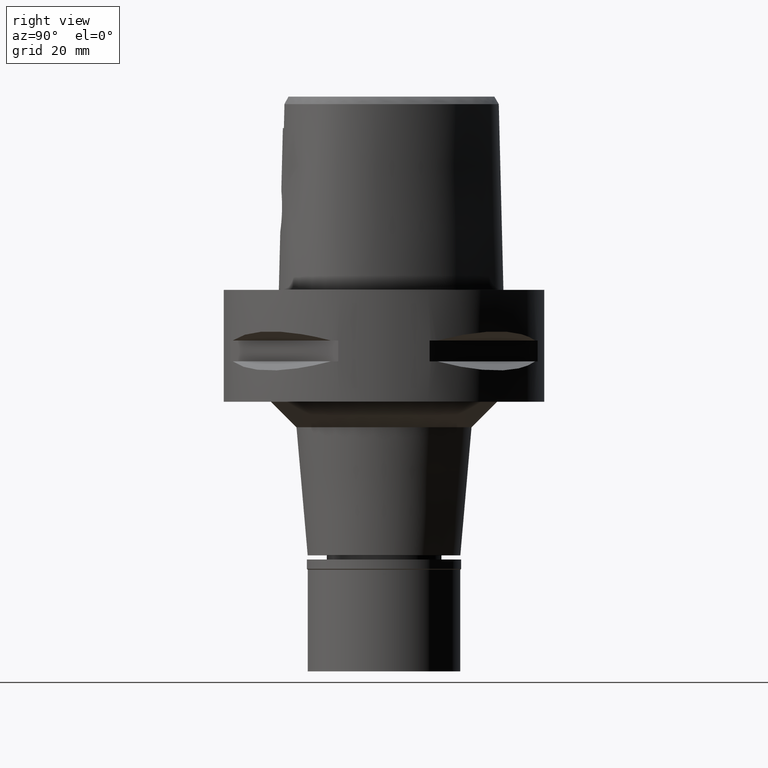
[diagram: clean part render]
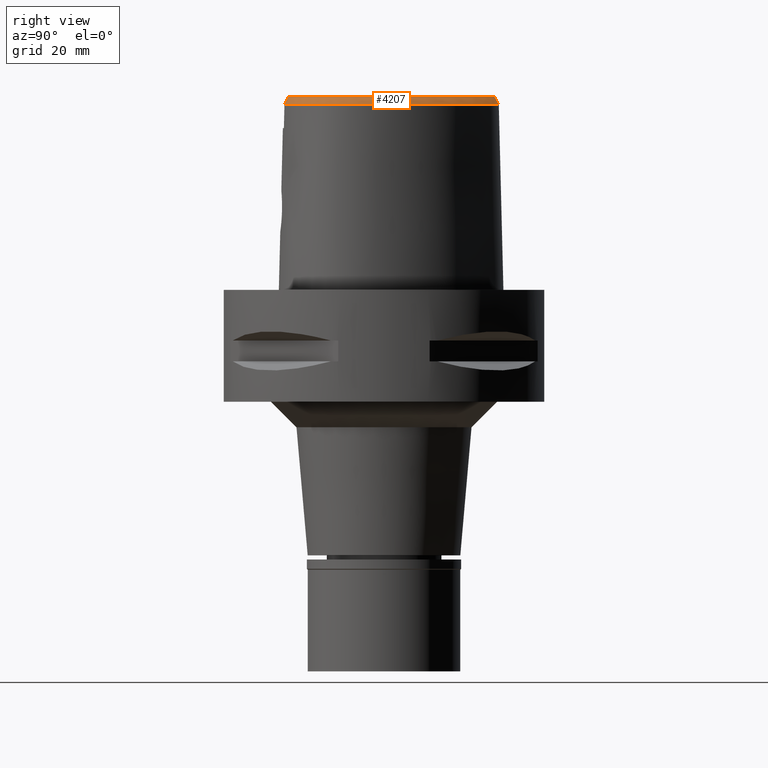
[diagram: same view with one face highlighted and labeled with its STEP entity id]
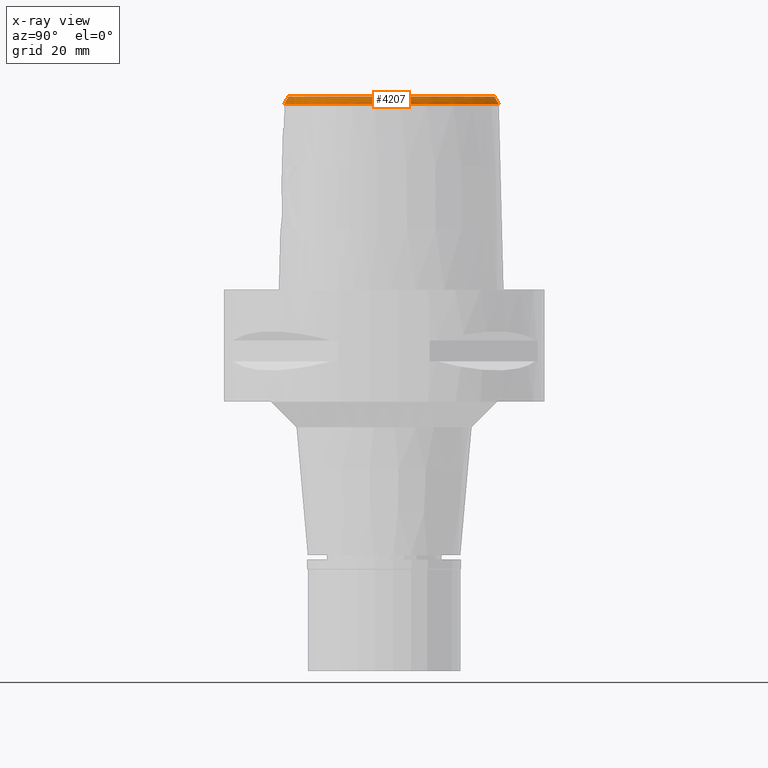
[diagram: x-ray of the same camera — body ghosted, the highlighted face saturated]
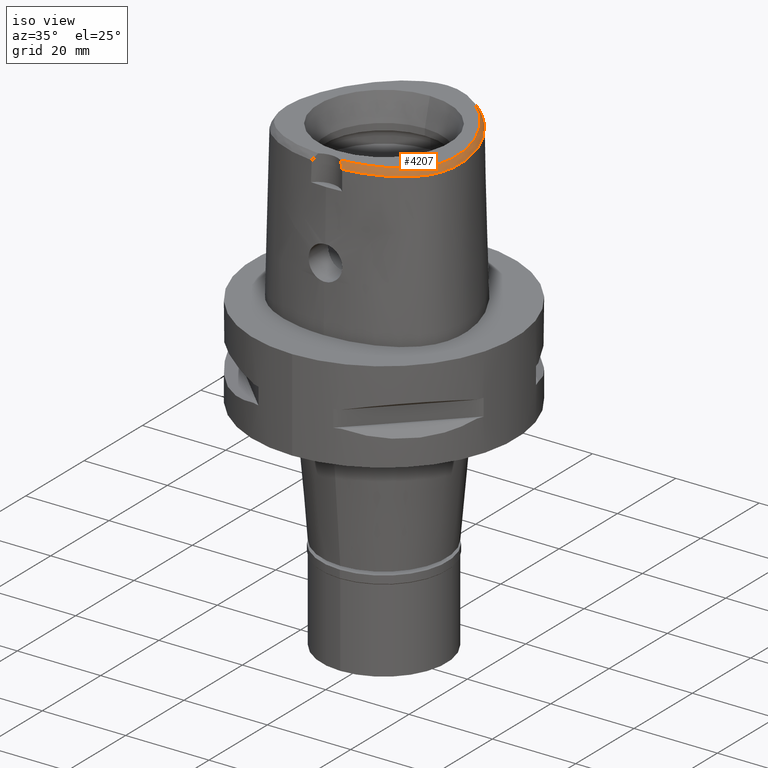
[diagram: same view with one face highlighted and labeled with its STEP entity id]
A machine part, right view. The second image highlights one B-rep face of the part: STEP entity #4207.
The next image is the same camera in x-ray: the body ghosted, the highlighted face saturated — about 0% of this face is hidden behind the body in this view.
A second angle (iso view) of the same face is appended — the face is thin or edge-on in the first view.
In plain terms, the highlighted face is a freeform B-spline surface patch.
Its self-contained STEP definition (entity closure, byte-faithful):
#1 = CARTESIAN_POINT ( 'NONE',  ( 21.14970177530914341, -6.717195943319514306, 36.52186680739949054 ) ) ;
#9 = CARTESIAN_POINT ( 'NONE',  ( 12.89707384149000191, 15.29932841099000029, 36.96650185788000442 ) ) ;
#30 = CARTESIAN_POINT ( 'NONE',  ( 20.57412667901000347, 1.760994533609000046, 36.37768498291999464 ) ) ;
#45 = CARTESIAN_POINT ( 'NONE',  ( 18.90964962507557701, -12.28759713487997729, 36.52186680739949054 ) ) ;
#54 = CARTESIAN_POINT ( 'NONE',  ( 21.10947639427000055, -0.8638825248388000144, 36.37768126527999613 ) ) ;
#78 = CARTESIAN_POINT ( 'NONE',  ( 15.11757802520000027, 13.11683337974000096, 36.37768146689000304 ) ) ;
#101 = CARTESIAN_POINT ( 'NONE',  ( 12.37768467759000046, 14.83425721308999989, 38.14414233563000067 ) ) ;
#122 = CARTESIAN_POINT ( 'NONE',  ( 5.059249257020204560, 20.53399274679508935, 37.99999999999351985 ) ) ;
#126 = CARTESIAN_POINT ( 'NONE',  ( 2.886169142840000035, 21.93877101398000207, 36.96650167611999649 ) ) ;
#132 = CARTESIAN_POINT ( 'NONE',  ( 4.851744237049000041, -19.51669733033999776, 36.37768077474999728 ) ) ;
#152 = CARTESIAN_POINT ( 'NONE',  ( 14.34383722811187489, 12.54786717290081732, 37.99999999999538147 ) ) ;
#154 = CARTESIAN_POINT ( 'NONE',  ( 4.473594899299000005, 21.43800155724999712, 36.96650128865000084 ) ) ;
#158 = CARTESIAN_POINT ( 'NONE',  ( 13.29825933855999942, -15.77408979790999943, 38.14414241843000042 ) ) ;
#177 = CARTESIAN_POINT ( 'NONE',  ( 6.015502154314999572, 20.36569104726000390, 37.55532203231000210 ) ) ;
#182 = CARTESIAN_POINT ( 'NONE',  ( 7.751821250936000496, -18.60269806256999914, 36.96650319154999664 ) ) ;
#197 = CARTESIAN_POINT ( 'NONE',  ( 18.31883910942821458, -11.58595831187663805, 38.00000000000159162 ) ) ;
#201 = CARTESIAN_POINT ( 'NONE',  ( 7.248029728835999386, 20.48152153702000078, 36.37768075670999224 ) ) ;
#205 = CARTESIAN_POINT ( 'NONE',  ( 10.38106374969999912, -17.82127752267000176, 36.96650293593000214 ) ) ;
#226 = CARTESIAN_POINT ( 'NONE',  ( 19.78323211893027889, -8.541156231035369473, 37.99999999999820233 ) ) ;
#229 = CARTESIAN_POINT ( 'NONE',  ( 6.716945151011000092, 19.58052588167999986, 38.14414241224000079 ) ) ;
#235 = CARTESIAN_POINT ( 'NONE',  ( 14.71680234161999934, -16.16116414793000189, 36.37768124632000166 ) ) ;
#253 = CARTESIAN_POINT ( 'NONE',  ( 2.682287482605000051, -18.78036330228999873, 38.00000000000000000 ) ) ;
#258 = CARTESIAN_POINT ( 'NONE',  ( 20.91832378970000406, -8.033925193692999400, 36.37768062399999991 ) ) ;
#272 = CARTESIAN_POINT ( 'NONE',  ( 20.36412151360562817, -5.276385427453508470, 38.00000000000427747 ) ) ;
#277 = CARTESIAN_POINT ( 'NONE',  ( 19.53860153543000067, -10.75124694095000066, 36.96650112092000029 ) ) ;
#297 = CARTESIAN_POINT ( 'NONE',  ( 19.98468477322899162, -7.807876343103653305, 37.99999999999435119 ) ) ;
#304 = CARTESIAN_POINT ( 'NONE',  ( 20.36836086471999963, -8.720413908823999805, 36.96650128936000357 ) ) ;
#305 = DIRECTION ( 'NONE',  ( -1.130556342039014799E-11, -0.5092834681090075977, 0.8605988316927122295 ) ) ;
#327 = CARTESIAN_POINT ( 'NONE',  ( 21.01250387564000022, -4.314976041740999690, 36.96650141085999763 ) ) ;
#349 = CARTESIAN_POINT ( 'NONE',  ( 18.60423079243999922, -10.98948303715000030, 38.14414239495999936 ) ) ;
#378 = CARTESIAN_POINT ( 'NONE',  ( 17.11801492380000056, 8.643081854167999012, 37.55532196427000002 ) ) ;
#403 = CARTESIAN_POINT ( 'NONE',  ( 18.71576929327000016, 4.228552272275999613, 38.14414246691999466 ) ) ;
#417 = CARTESIAN_POINT ( 'NONE',  ( 19.88562079789233650, 4.345879946636497237, 36.52186680739949054 ) ) ;
#423 = CARTESIAN_POINT ( 'NONE',  ( 11.90115833732999917, 16.35715957668000087, 36.96650371599000096 ) ) ;
#426 = B_SPLINE_SURFACE_WITH_KNOTS ( 'NONE', 3, 3, ( 
 ( #4315, #2789, #1993, #1287 ),
 ( #4692, #3209, #1311, #507 ),
 ( #2047, #3576, #3235, #3904 ),
 ( #4668, #3500, #4343, #1336 ),
 ( #3978, #1634, #4746, #132 ),
 ( #2396, #1662, #3602, #2425 ),
 ( #2813, #4289, #182, #4644 ),
 ( #2840, #582, #2019, #1363 ),
 ( #606, #4268, #205, #2095 ),
 ( #3933, #2501, #1736, #2862 ),
 ( #950, #2452, #4368, #3531 ),
 ( #158, #3158, #3955, #532 ),
 ( #3134, #923, #556, #235 ),
 ( #997, #1708, #3555, #1684 ),
 ( #1265, #2767, #3181, #973 ),
 ( #898, #2476, #2122, #2568 ),
 ( #2957, #677, #2216, #3326 ),
 ( #1119, #4417, #634, #2141 ),
 ( #1023, #4027, #4792, #3722 ),
 ( #1805, #727, #1094, #2546 ),
 ( #349, #3676, #2165, #1779 ),
 ( #3281, #1849, #277, #4002 ),
 ( #4839, #3304, #2933, #1408 ),
 ( #2910, #4073, #4817, #1828 ),
 ( #3629, #4442, #304, #704 ),
 ( #2525, #2984, #1044, #258 ),
 ( #1455, #3353, #2594, #1758 ),
 ( #3256, #4047, #657, #1432 ),
 ( #1064, #4865, #3647, #4766 ),
 ( #2193, #3700, #327, #4469 ),
 ( #4099, #1483, #1385, #4497 ),
 ( #2889, #4394, #1167, #4608 ),
 ( #480, #4215, #3426, #54 ),
 ( #3452, #773, #2268, #3775 ),
 ( #4518, #3009, #2618, #30 ),
 ( #844, #4122, #1603, #1555 ),
 ( #403, #1529, #747, #3746 ),
 ( #1920, #3852, #2340, #2240 ),
 ( #1191, #3404, #1580, #4170 ),
 ( #1946, #378, #1876, #3030 ),
 ( #1897, #1141, #2637, #4146 ),
 ( #2666, #3822, #4194, #453 ),
 ( #3381, #2291, #1969, #78 ),
 ( #797, #3055, #4542, #3477 ),
 ( #101, #3798, #9, #3104 ),
 ( #3081, #1508, #423, #4565 ),
 ( #2692, #2712, #818, #2315 ),
 ( #4587, #1214, #3526, #2736 ),
 ( #4689, #553, #3952, #2041 ),
 ( #1680, #2786, #2810, #3972 ),
 ( #229, #527, #4243, #201 ),
 ( #1629, #177, #2421, #1703 ),
 ( #3206, #2447, #3177, #4718 ),
 ( #2764, #3550, #154, #918 ),
 ( #578, #2066, #1306, #4264 ),
 ( #4311, #1333, #126, #947 ),
 ( #3572, #4664, #3230, #2473 ),
 ( #2835, #4339, #970, #600 ),
 ( #2090, #3598, #3153, #1656 ),
 ( #1733, #1237, #504, #4640 ),
 ( #871, #2368, #3877, #1990 ),
 ( #3498, #3129, #1283, #1260 ) ),
 .UNSPECIFIED., .F., .F., .F.,
 ( 4, 1, 1, 1, 1, 1, 1, 1, 1, 1, 1, 1, 1, 1, 1, 1, 1, 1, 1, 1, 1, 1, 1, 1, 1, 1, 1, 1, 1, 1, 1, 1, 1, 1, 1, 1, 1, 1, 1, 1, 1, 1, 1, 1, 1, 1, 1, 1, 1, 1, 1, 1, 1, 1, 1, 1, 1, 1, 1, 4 ),
 ( 4, 4 ),
 ( -0.006872922983041999424, 0.0000000000000000000, 0.005521655259608000341, 0.02328019712995000115, 0.04103873900030000077, 0.05879728087063999797, 0.07655582274102000484, 0.09431436461132000626, 0.1120729064816999992, 0.1298314483520000007, 0.1475899902222999882, 0.1653485320926999791, 0.1831070739629999944, 0.2008656158334000130, 0.2186241577037000006, 0.2363826995740999914, 0.2541412414444000345, 0.2718997833148000254, 0.2896583251850999852, 0.3074168670554999760, 0.3251754089257999913, 0.3429339507961000066, 0.3606924926664999975, 0.3784510345368000128, 0.3962095764072000037, 0.4139681182775000190, 0.4317266601479000099, 0.4494852020181999697, 0.4672437438886000161, 0.4850022857588999758, 0.5027608276292000467, 0.5205193694995999820, 0.5382779113698999973, 0.5560364532403000437, 0.5737949951105999480, 0.5915535369809999944, 0.6093120788513000097, 0.6270706207217000561, 0.6448291625919999603, 0.6625877044622999756, 0.6803462463327000220, 0.6981047882029999263, 0.7158633300733999727, 0.7336218719436999880, 0.7513804138142000655, 0.7691389556844999698, 0.7868974975549000161, 0.8046560394252000314, 0.8224145812955999668, 0.8401731231658999821, 0.8579316650361999974, 0.8756902069066000438, 0.8934487487768999481, 0.9112072906472999945, 0.9289658325176000098, 0.9467243743879999451, 0.9644829162583000715, 0.9822414581287000068, 1.000000000000000000, 1.016088127153999876 ),
 ( -0.07453461652012000060, 1.074557839799999970 ),
 .UNSPECIFIED. ) ;
#428 = CARTESIAN_POINT ( 'NONE',  ( -3.470663397183000013E-11, 21.68728795390000030, 38.00000000000000000 ) ) ;
#453 = CARTESIAN_POINT ( 'NONE',  ( 16.04647234761999641, 11.78925035284000167, 36.37768174789999875 ) ) ;
#469 = VERTEX_POINT ( 'NONE', #428 ) ;
#478 = CARTESIAN_POINT ( 'NONE',  ( 1.325020189552959415, 21.61081414408923962, 37.99999999999951683 ) ) ;
#480 = CARTESIAN_POINT ( 'NONE',  ( 20.07545377862000180, -1.020501454569999966, 38.14414236706000594 ) ) ;
#502 = CARTESIAN_POINT ( 'NONE',  ( -3.470663397183000013E-11, 21.68728795390000030, 38.00000000000000000 ) ) ;
#504 = CARTESIAN_POINT ( 'NONE',  ( 0.02371710016003000104, 22.30540715090999981, 36.96650151314999988 ) ) ;
#507 = CARTESIAN_POINT ( 'NONE',  ( 2.341063505835000225, -19.76887661224999704, 36.37768169460000678 ) ) ;
#524 = CARTESIAN_POINT ( 'NONE',  ( 13.40430406168781019, 13.76274261013243816, 37.99999999999824496 ) ) ;
#527 = CARTESIAN_POINT ( 'NONE',  ( 6.893973343619999916, 19.88085776678999750, 37.55532186039999942 ) ) ;
#532 = CARTESIAN_POINT ( 'NONE',  ( 13.79640147813000084, -16.69370015822000042, 36.37768068701999624 ) ) ;
#553 = CARTESIAN_POINT ( 'NONE',  ( 8.735917596942998742, 18.65738163636999758, 37.55532171572999545 ) ) ;
#556 = CARTESIAN_POINT ( 'NONE',  ( 14.53424573688999999, -15.86415455126999952, 36.96650162046000077 ) ) ;
#576 = CARTESIAN_POINT ( 'NONE',  ( 3.637738219117000238, -19.56971420299000286, 36.52185956443999970 ) ) ;
#578 = CARTESIAN_POINT ( 'NONE',  ( 3.456497054372000388, 21.05333595769000254, 38.14414237249000195 ) ) ;
#582 = CARTESIAN_POINT ( 'NONE',  ( 9.011883061057998745, -17.90032869494000067, 37.55532299713999578 ) ) ;
#600 = CARTESIAN_POINT ( 'NONE',  ( 1.444559467824999999, 22.56400674609000134, 36.37768016969999962 ) ) ;
#606 = CARTESIAN_POINT ( 'NONE',  ( 10.14912750246999984, -17.16378470296000103, 38.14414218526999889 ) ) ;
#622 = EDGE_LOOP ( 'NONE', ( #2909, #1783, #4212, #1968 ) ) ;
#625 = CARTESIAN_POINT ( 'NONE',  ( 19.26272899268248295, 2.870227893749529802, 37.99999999999991473 ) ) ;
#634 = CARTESIAN_POINT ( 'NONE',  ( 17.90915373513999853, -13.08960051660000090, 36.96650134231000351 ) ) ;
#652 = CARTESIAN_POINT ( 'NONE',  ( 14.21382211799298290, -15.34284287400540414, 37.99999999999700151 ) ) ;
#657 = CARTESIAN_POINT ( 'NONE',  ( 20.88668846790999822, -6.253794180288999804, 36.96650159759999354 ) ) ;
#670 = EDGE_CURVE ( 'NONE', #3909, #966, #943, .T. ) ;
#671 = CARTESIAN_POINT ( 'NONE',  ( 18.24247239569156420, 5.672548708072183921, 38.00000000000045475 ) ) ;
#677 = CARTESIAN_POINT ( 'NONE',  ( 17.12389722038000173, -13.41079645936999931, 37.55532183467000351 ) ) ;
#704 = CARTESIAN_POINT ( 'NONE',  ( 20.70172928971000204, -8.822543312210999744, 36.37768072658000307 ) ) ;
#720 = CARTESIAN_POINT ( 'NONE',  ( 20.09619608769126486, -10.23243839430523394, 36.52186680739949054 ) ) ;
#727 = CARTESIAN_POINT ( 'NONE',  ( 18.53508698649000053, -11.73620403365000087, 37.55532177980999364 ) ) ;
#747 = CARTESIAN_POINT ( 'NONE',  ( 19.37084994882000188, 4.467129615565000655, 36.96650091652999492 ) ) ;
#766 = CARTESIAN_POINT ( 'NONE',  ( 2.376843874104029197, 22.39422497744780571, 36.52186680739949054 ) ) ;
#773 = CARTESIAN_POINT ( 'NONE',  ( 20.19944479790000003, 0.2788047587418999718, 37.55532281444999398 ) ) ;
#791 = CARTESIAN_POINT ( 'NONE',  ( 21.07429999882787541, -0.4408303635840717938, 36.52186680739949054 ) ) ;
#797 = CARTESIAN_POINT ( 'NONE',  ( 13.33805132346000022, 13.70896224039000089, 38.14414245774999301 ) ) ;
#818 = CARTESIAN_POINT ( 'NONE',  ( 10.90334570908000167, 17.31709843731000120, 36.96650384088999886 ) ) ;
#844 = CARTESIAN_POINT ( 'NONE',  ( 19.18122287177000018, 2.844955500071999932, 38.14414222967999990 ) ) ;
#871 = CARTESIAN_POINT ( 'NONE',  ( -0.3946363689240999784, 21.59646170521000030, 38.14414241358999647 ) ) ;
#873 = EDGE_CURVE ( 'NONE', #469, #966, #2284, .T. ) ;
#892 = CARTESIAN_POINT ( 'NONE',  ( 11.46587147799870721, 15.92717600803132072, 37.99999999999972999 ) ) ;
#898 = CARTESIAN_POINT ( 'NONE',  ( 16.30644132439000060, -13.69830302597999960, 38.14414242962999424 ) ) ;
#918 = CARTESIAN_POINT ( 'NONE',  ( 4.597759483518999879, 21.76378801678000130, 36.37768072547000031 ) ) ;
#923 = CARTESIAN_POINT ( 'NONE',  ( 14.35168913215999886, -15.56714495461000070, 37.55532199459999987 ) ) ;
#943 = B_SPLINE_CURVE_WITH_KNOTS ( 'NONE', 3,
 ( #576, #3408, #1533, #4547, #2294, #3801 ),
 .UNSPECIFIED., .F., .F.,
 ( 4, 1, 1, 4 ),
 ( 0.0000000000000000000, 0.3333333333333000081, 0.6666666666667000474, 1.000000000000000000 ),
 .UNSPECIFIED. ) ;
#947 = CARTESIAN_POINT ( 'NONE',  ( 2.971194398136000281, 22.27690405877000046, 36.37768133370000356 ) ) ;
#950 = CARTESIAN_POINT ( 'NONE',  ( 12.33964690872000070, -16.26160620234999854, 38.14414242865999682 ) ) ;
#966 = VERTEX_POINT ( 'NONE', #253 ) ;
#970 = CARTESIAN_POINT ( 'NONE',  ( 1.401172702803000103, 22.21804561899000063, 36.96650093459999908 ) ) ;
#973 = CARTESIAN_POINT ( 'NONE',  ( 16.31260504491999797, -15.05277267313000067, 36.37768088978000236 ) ) ;
#983 = EDGE_CURVE ( 'NONE', #1043, #3909, #2304, .T. ) ;
#988 = CARTESIAN_POINT ( 'NONE',  ( 20.38292172607905783, -3.276278498261545380, 37.99999999999869971 ) ) ;
#997 = CARTESIAN_POINT ( 'NONE',  ( 14.95761382867000044, -14.75375344815999945, 38.14414232740000443 ) ) ;
#1023 = CARTESIAN_POINT ( 'NONE',  ( 17.84469209826000125, -12.08282415701999923, 38.14414235897000793 ) ) ;
#1039 = CARTESIAN_POINT ( 'NONE',  ( 8.936919536466678693, -17.64796721714970218, 37.99999999999970868 ) ) ;
#1043 = VERTEX_POINT ( 'NONE', #3693 ) ;
#1044 = CARTESIAN_POINT ( 'NONE',  ( 20.57945963384999999, -7.951880793677999826, 36.96650122401000260 ) ) ;
#1064 = CARTESIAN_POINT ( 'NONE',  ( 20.27895479684000080, -5.270875020233000363, 38.14414232485000156 ) ) ;
#1094 = CARTESIAN_POINT ( 'NONE',  ( 18.82143160964000117, -11.93515190386000135, 36.96650112126000209 ) ) ;
#1112 = CARTESIAN_POINT ( 'NONE',  ( 10.15538781006478608, 18.47129526702408597, 36.52186680739949054 ) ) ;
#1119 = CARTESIAN_POINT ( 'NONE',  ( 17.38945162075000184, -12.62465383522000018, 38.14414240754000218 ) ) ;
#1141 = CARTESIAN_POINT ( 'NONE',  ( 16.32353121816999675, 10.04461416375999860, 37.55532186445000065 ) ) ;
#1162 = CARTESIAN_POINT ( 'NONE',  ( -1.528861022272000059E-11, 22.56201468012000078, 36.52186680743999858 ) ) ;
#1167 = CARTESIAN_POINT ( 'NONE',  ( 20.91372034968999927, -2.115363715709000392, 36.96650102649999781 ) ) ;
#1191 = CARTESIAN_POINT ( 'NONE',  ( 17.52670811385999983, 7.063166974619999650, 38.14414232164000396 ) ) ;
#1214 = CARTESIAN_POINT ( 'NONE',  ( 9.692632954540000512, 17.90803154586000190, 37.55532227672999568 ) ) ;
#1234 = CARTESIAN_POINT ( 'NONE',  ( 2.736932690726640693, 21.34527940056770490, 37.99999999999956657 ) ) ;
#1237 = CARTESIAN_POINT ( 'NONE',  ( 0.02306034633805000011, 21.95674725708000352, 37.55532194843000582 ) ) ;
#1260 = CARTESIAN_POINT ( 'NONE',  ( -0.6582796405649999905, 22.62926548483000033, 36.37768024682999624 ) ) ;
#1265 = CARTESIAN_POINT ( 'NONE',  ( 15.66820428794000009, -14.22893113405000065, 38.14414240041999449 ) ) ;
#1281 = CARTESIAN_POINT ( 'NONE',  ( 12.44125753246389188, 14.89118158853926488, 37.99999999999864286 ) ) ;
#1283 = CARTESIAN_POINT ( 'NONE',  ( -0.6386523409762999703, 22.28138798117999997, 36.96650098373999782 ) ) ;
#1287 = CARTESIAN_POINT ( 'NONE',  ( 2.131124303371000117, -19.78181619753999954, 36.37768164222000422 ) ) ;
#1306 = CARTESIAN_POINT ( 'NONE',  ( 3.666392298348999823, 21.71830088859999819, 36.96650159354999943 ) ) ;
#1311 = CARTESIAN_POINT ( 'NONE',  ( 2.317506537534999911, -19.42121629178000219, 36.96650190604000130 ) ) ;
#1330 = CARTESIAN_POINT ( 'NONE',  ( 3.529311563348333625, -18.70747079909740052, 38.00000000000126477 ) ) ;
#1333 = CARTESIAN_POINT ( 'NONE',  ( 2.801143887542999700, 21.60063796919000012, 37.55532201855000096 ) ) ;
#1336 = CARTESIAN_POINT ( 'NONE',  ( 3.630466004782999967, -19.66234978924000387, 36.37768163209000249 ) ) ;
#1356 = CARTESIAN_POINT ( 'NONE',  ( 11.32341394162888903, -16.80569392800429185, 37.99999999999648992 ) ) ;
#1363 = CARTESIAN_POINT ( 'NONE',  ( 9.210408960970998038, -18.56865758895000340, 36.37768490389999698 ) ) ;
#1377 = CARTESIAN_POINT ( 'NONE',  ( 2.682287482605000051, -18.78036330228999873, 38.00000000000000000 ) ) ;
#1385 = CARTESIAN_POINT ( 'NONE',  ( 20.99419584457999832, -3.248707976039999945, 36.96650128413000402 ) ) ;
#1408 = CARTESIAN_POINT ( 'NONE',  ( 20.16417166545999962, -10.25896931704999915, 36.37768094126000307 ) ) ;
#1426 = CARTESIAN_POINT ( 'NONE',  ( 16.93855157777507259, -13.22377441789408437, 37.99999999999582911 ) ) ;
#1432 = CARTESIAN_POINT ( 'NONE',  ( 21.23277426796000000, -6.295922505024000415, 36.37768121042999780 ) ) ;
#1450 = CARTESIAN_POINT ( 'NONE',  ( 0.7901461619528095115, 22.56201467849319897, 36.52186680739949054 ) ) ;
#1455 = CARTESIAN_POINT ( 'NONE',  ( 20.06728393761000007, -7.006997952856999667, 38.14414242883999862 ) ) ;
#1483 = CARTESIAN_POINT ( 'NONE',  ( 20.64593148124000166, -3.264415872183000111, 37.55532184988999944 ) ) ;
#1508 = CARTESIAN_POINT ( 'NONE',  ( 11.65316010487999954, 16.11218281544000064, 37.55532289623000253 ) ) ;
#1529 = CARTESIAN_POINT ( 'NONE',  ( 19.04330962104000236, 4.347840943919999646, 37.55532169171999612 ) ) ;
#1533 = CARTESIAN_POINT ( 'NONE',  ( 3.333199324490999871, -19.26519645280000148, 37.08690027703000425 ) ) ;
#1547 = CARTESIAN_POINT ( 'NONE',  ( 10.91891095221480334, -18.03046396093074222, 36.52186680739949054 ) ) ;
#1555 = CARTESIAN_POINT ( 'NONE',  ( 20.18007834423000091, 3.154668052262000089, 36.37768281147999261 ) ) ;
#1577 = CARTESIAN_POINT ( 'NONE',  ( 0.6513209347955477568, 21.67370899611150037, 38.00000000000106581 ) ) ;
#1580 = CARTESIAN_POINT ( 'NONE',  ( 18.15603397486000148, 7.363141544410999551, 36.96650195819000118 ) ) ;
#1603 = CARTESIAN_POINT ( 'NONE',  ( 19.84712652007999978, 3.051430534864999711, 36.96650261755000599 ) ) ;
#1629 = CARTESIAN_POINT ( 'NONE',  ( 5.855260395656999961, 20.05606905264999895, 38.14414235651000240 ) ) ;
#1634 = CARTESIAN_POINT ( 'NONE',  ( 4.752899806358000134, -18.82657128091999965, 37.55532186533999806 ) ) ;
#1654 = CARTESIAN_POINT ( 'NONE',  ( 5.894487344449729882, 20.13186406531951889, 37.99999999999224087 ) ) ;
#1656 = CARTESIAN_POINT ( 'NONE',  ( 0.7116441701192000036, 22.63249110253999774, 36.37768051175000039 ) ) ;
#1662 = CARTESIAN_POINT ( 'NONE',  ( 6.246332945562000027, -18.57522877194999822, 37.55532181443999917 ) ) ;
#1680 = CARTESIAN_POINT ( 'NONE',  ( 7.608731087975000307, 19.02295096006999842, 38.14414240899999697 ) ) ;
#1684 = CARTESIAN_POINT ( 'NONE',  ( 15.55410382834999972, -15.61289165281000102, 36.37768171152999486 ) ) ;
#1703 = CARTESIAN_POINT ( 'NONE',  ( 6.335985671629999594, 20.98493503647999958, 36.37768138389999706 ) ) ;
#1708 = CARTESIAN_POINT ( 'NONE',  ( 15.15644382856000050, -15.04013284970999997, 37.55532212211000598 ) ) ;
#1730 = CARTESIAN_POINT ( 'NONE',  ( 19.64387775268384928, 1.522048414457827459, 38.00000000000052580 ) ) ;
#1733 = CARTESIAN_POINT ( 'NONE',  ( 0.02240359251607999813, 21.60808736326000101, 38.14414238370999755 ) ) ;
#1736 = CARTESIAN_POINT ( 'NONE',  ( 11.55632777949999834, -17.37150655535999988, 36.96650113970000007 ) ) ;
#1758 = CARTESIAN_POINT ( 'NONE',  ( 21.09655001954999776, -7.193034581951000206, 36.37768056993999721 ) ) ;
#1779 = CARTESIAN_POINT ( 'NONE',  ( 19.49882329837000228, -11.53162346260999982, 36.37768095126000389 ) ) ;
#1783 = ORIENTED_EDGE ( 'NONE', *, *, #2877, .T. ) ;
#1784 = VECTOR ( 'NONE', #305, 1000.000000000000227 ) ;
#1805 = CARTESIAN_POINT ( 'NONE',  ( 18.24874236333999988, -11.53725616342999949, 38.14414243836999674 ) ) ;
#1828 = CARTESIAN_POINT ( 'NONE',  ( 20.44969248207999968, -9.562783115451999549, 36.37768120640999570 ) ) ;
#1849 = CARTESIAN_POINT ( 'NONE',  ( 19.22957190780000047, -10.58975733243000050, 37.55532177966999541 ) ) ;
#1876 = CARTESIAN_POINT ( 'NONE',  ( 17.42523794718999852, 8.807771201605000044, 36.96650154996000026 ) ) ;
#1897 = CARTESIAN_POINT ( 'NONE',  ( 16.02443761322999904, 9.865584790750999034, 38.14414241092999447 ) ) ;
#1913 = CARTESIAN_POINT ( 'NONE',  ( 20.67704204634326359, -8.734985285293367596, 36.52186680739949054 ) ) ;
#1920 = CARTESIAN_POINT ( 'NONE',  ( 18.16378453587000052, 5.639535203329000268, 38.14414238326000373 ) ) ;
#1946 = CARTESIAN_POINT ( 'NONE',  ( 16.81079190041999993, 8.478392506730997980, 38.14414237857999979 ) ) ;
#1966 = CARTESIAN_POINT ( 'NONE',  ( 9.524842839487650537, 17.70516372195064037, 38.00000000000659384 ) ) ;
#1968 = ORIENTED_EDGE ( 'NONE', *, *, #670, .F. ) ;
#1969 = CARTESIAN_POINT ( 'NONE',  ( 14.83674890663999868, 12.91032717124999962, 36.96650176097000440 ) ) ;
#1990 = CARTESIAN_POINT ( 'NONE',  ( -0.4341193592393000067, 22.64124697659000063, 36.37768074148999631 ) ) ;
#1993 = CARTESIAN_POINT ( 'NONE',  ( 2.109691425698999812, -19.43402498145999857, 36.96650187267000121 ) ) ;
#2013 = CARTESIAN_POINT ( 'NONE',  ( 6.760281394350419859, 19.65404668909436836, 37.99999999999629807 ) ) ;
#2019 = CARTESIAN_POINT ( 'NONE',  ( 9.111146011014000123, -18.23449314194999715, 36.96650395051999993 ) ) ;
#2039 = CARTESIAN_POINT ( 'NONE',  ( 17.60373714028273895, 7.099883643192621996, 37.99999999999889155 ) ) ;
#2041 = CARTESIAN_POINT ( 'NONE',  ( 9.151884709664999562, 19.21692285010999868, 36.37768022889999742 ) ) ;
#2047 = CARTESIAN_POINT ( 'NONE',  ( 2.636396856090000185, -18.69996249626999685, 38.14414232439000330 ) ) ;
#2063 = CARTESIAN_POINT ( 'NONE',  ( 10.17751632998223776, -17.24426134458581572, 37.99999999999617017 ) ) ;
#2066 = CARTESIAN_POINT ( 'NONE',  ( 3.561444676360999928, 21.38581842313999815, 37.55532198302000069 ) ) ;
#2071 = FACE_OUTER_BOUND ( 'NONE', #622, .T. ) ;
#2090 = CARTESIAN_POINT ( 'NONE',  ( 0.6459612396050000704, 21.58852159158999839, 38.14414243400999993 ) ) ;
#2095 = CARTESIAN_POINT ( 'NONE',  ( 10.49703187331000009, -18.15002393251999990, 36.37768331126000021 ) ) ;
#2122 = CARTESIAN_POINT ( 'NONE',  ( 16.76718740208999847, -14.22169682565999871, 36.96650118392000195 ) ) ;
#2141 = CARTESIAN_POINT ( 'NONE',  ( 18.16900479232999999, -13.32207385729999771, 36.37768080969999573 ) ) ;
#2157 = CARTESIAN_POINT ( 'NONE',  ( 18.79595068776181677, 4.257753965101412241, 37.99999999999828759 ) ) ;
#2165 = CARTESIAN_POINT ( 'NONE',  ( 19.20062579639999711, -11.35090998745000057, 36.96650143248999143 ) ) ;
#2193 = CARTESIAN_POINT ( 'NONE',  ( 20.31528193032000118, -4.308548195129999314, 38.14414239798000494 ) ) ;
#2216 = CARTESIAN_POINT ( 'NONE',  ( 17.36932265024000088, -13.65844169278000031, 36.96650124874999932 ) ) ;
#2240 = CARTESIAN_POINT ( 'NONE',  ( 19.12810228915000010, 6.044114877939000152, 36.37768108294000058 ) ) ;
#2268 = CARTESIAN_POINT ( 'NONE',  ( 20.54100208528999971, 0.3485188025229999931, 36.96650352591999678 ) ) ;
#2284 = B_SPLINE_CURVE_WITH_KNOTS ( 'NONE', 3,
 ( #502, #2338, #1577, #478, #3127, #1234, #3079, #3496, #122, #1654, #2013, #3151, #4585, #1966, #4637, #892, #1281, #524, #152, #2784, #4284, #2419, #2039, #671, #2157, #625, #1730, #4360, #2541, #4809, #988, #4041, #272, #3296, #3227, #297, #226, #3949, #2470, #3271, #3250, #197, #3569, #2520, #1426, #3622, #3595, #4409, #652, #4740, #4021, #1356, #2063, #1039, #2855, #3969, #4760, #1330, #4785, #1377 ),
 .UNSPECIFIED., .F., .F.,
 ( 4, 1, 1, 1, 1, 1, 1, 1, 1, 1, 1, 1, 1, 1, 1, 1, 1, 1, 1, 1, 1, 1, 1, 1, 1, 1, 1, 1, 1, 1, 1, 1, 1, 1, 1, 1, 1, 1, 1, 1, 1, 1, 1, 1, 1, 1, 1, 1, 1, 1, 1, 1, 1, 1, 1, 1, 1, 4 ),
 ( 0.0000000000000000000, 0.01775854187129999318, 0.03551708374169992855, 0.05327562561200005486, 0.07103416748239999023, 0.08879270935270000553, 0.1065512512231000519, 0.1243097930933999562, 0.1420683349638000026, 0.1598268768341000179, 0.1775854187044000332, 0.1953439605747999686, 0.2131025024450999839, 0.2308610443155000302, 0.2486195861857999345, 0.2663781280563000120, 0.2841366699266000273, 0.3018952117970000737, 0.3196537536672999780, 0.3374122955377000244, 0.3551708374080000397, 0.3729293792782999439, 0.3906879211486999903, 0.4084464630190000056, 0.4262050048894000520, 0.4439635467596999563, 0.4617220886301000027, 0.4794806305004000180, 0.4972391723707999533, 0.5149977142410999686, 0.5327562561113999839, 0.5505147979818000303, 0.5682733398521000456, 0.5860318817224999810, 0.6037904235927999963, 0.6215489654632000427, 0.6393075073334999470, 0.6570660492038999934, 0.6748245910742000087, 0.6925831329445000240, 0.7103416748149000703, 0.7281002166851999746, 0.7458587585556000210, 0.7636173004259000363, 0.7813758422962999717, 0.7991343841665999870, 0.8168929260370000334, 0.8346514679073000487, 0.8524100097776999840, 0.8701685516479999993, 0.8879270935183000146, 0.9056856353886799660, 0.9234441772589799813, 0.9412027191293600437, 0.9589612609997000270, 0.9767198028700500023, 0.9944783447403919840, 1.000000000000000000 ),
 .UNSPECIFIED. ) ;
#2285 = CARTESIAN_POINT ( 'NONE',  ( 14.22011350746215008, -16.41829354688619702, 36.52186680739949054 ) ) ;
#2291 = CARTESIAN_POINT ( 'NONE',  ( 14.55591978806999975, 12.70382096276000183, 37.55532205506000309 ) ) ;
#2294 = CARTESIAN_POINT ( 'NONE',  ( 2.793209274536999853, -18.85087272178999740, 37.86627538556000161 ) ) ;
#2304 = B_SPLINE_CURVE_WITH_KNOTS ( 'NONE', 3,
 ( #1162, #1450, #766, #4165, #4513, #1112, #4560, #3792, #417, #791, #3374, #1, #1913, #720, #3420, #45, #4490, #2977, #2285, #1547, #2561, #4858, #3717 ),
 .UNSPECIFIED., .F., .F.,
 ( 4, 1, 1, 1, 1, 1, 1, 1, 1, 1, 1, 1, 1, 1, 1, 1, 1, 1, 1, 1, 4 ),
 ( 0.0000000000000000000, 0.04382683003322330323, 0.08765366006602574867, 0.1314804900989335057, 0.1753073201318412766, 0.2629609801974462924, 0.3506146402631565850, 0.4382683003288668222, 0.5259219603945771704, 0.5697487904274848303, 0.6135756204601821029, 0.6574024504930898738, 0.6793158655094910792, 0.7012292805259976447, 0.7231426955423988501, 0.7450561105588001665, 0.7888829405917079374, 0.8327097706245104591, 0.8765366006573129809, 0.9641902607230757871, 1.000000000000000000 ),
 .UNSPECIFIED. ) ;
#2315 = CARTESIAN_POINT ( 'NONE',  ( 11.13884591342999997, 17.57411949685999986, 36.37768473180999962 ) ) ;
#2338 = CARTESIAN_POINT ( 'NONE',  ( 0.2185816947241114583, 21.68728795389745301, 38.00000000000034106 ) ) ;
#2340 = CARTESIAN_POINT ( 'NONE',  ( 18.80666303806000172, 5.909254986401998977, 36.96650151637999926 ) ) ;
#2368 = CARTESIAN_POINT ( 'NONE',  ( -0.4077973656958000515, 21.94472346232999982, 37.55532185623000174 ) ) ;
#2396 = CARTESIAN_POINT ( 'NONE',  ( 6.180341338963000197, -18.23294476235000161, 38.14414242713999670 ) ) ;
#2419 = CARTESIAN_POINT ( 'NONE',  ( 16.88599964843171719, 8.518708218769626583, 38.00000000000344613 ) ) ;
#2421 = CARTESIAN_POINT ( 'NONE',  ( 6.175743912973000072, 20.67531304187000174, 36.96650170811000180 ) ) ;
#2425 = CARTESIAN_POINT ( 'NONE',  ( 6.378316158759999688, -19.25979679114999854, 36.37768058905000146 ) ) ;
#2447 = CARTESIAN_POINT ( 'NONE',  ( 5.166955612808000531, 20.77424667925999913, 37.55532199473999810 ) ) ;
#2452 = CARTESIAN_POINT ( 'NONE',  ( 12.48906477768000123, -16.57657593240000082, 37.55532180973000322 ) ) ;
#2470 = CARTESIAN_POINT ( 'NONE',  ( 19.28677546796596332, -9.867757137505709153, 38.00000000000066080 ) ) ;
#2473 = CARTESIAN_POINT ( 'NONE',  ( 2.195981327841999953, 22.44663902661000066, 36.37768073878000052 ) ) ;
#2476 = CARTESIAN_POINT ( 'NONE',  ( 16.53681436323999776, -13.95999992582000182, 37.55532180678000032 ) ) ;
#2501 = CARTESIAN_POINT ( 'NONE',  ( 11.42362857467000126, -17.04914320236999714, 37.55532178775000318 ) ) ;
#2520 = CARTESIAN_POINT ( 'NONE',  ( 17.45306278053459437, -12.68156296993803167, 38.00000000000152767 ) ) ;
#2525 = CARTESIAN_POINT ( 'NONE',  ( 19.90173132214000162, -7.787791993649000766, 38.14414242403000088 ) ) ;
#2541 = CARTESIAN_POINT ( 'NONE',  ( 20.15982952132010197, -1.007721426051487512, 38.00000000000122213 ) ) ;
#2546 = CARTESIAN_POINT ( 'NONE',  ( 19.10777623279000181, -12.13409977408000096, 36.37768046269999900 ) ) ;
#2561 = CARTESIAN_POINT ( 'NONE',  ( 7.300578979384270362, -19.07170738130655963, 36.52186680739949054 ) ) ;
#2568 = CARTESIAN_POINT ( 'NONE',  ( 16.99756044094000274, -14.48339372549999915, 36.37768056107000803 ) ) ;
#2594 = CARTESIAN_POINT ( 'NONE',  ( 20.75346132556999734, -7.131022372252999730, 36.96650118956999620 ) ) ;
#2618 = CARTESIAN_POINT ( 'NONE',  ( 20.23649295592000286, 1.674269071699000078, 36.96650400085999877 ) ) ;
#2637 = CARTESIAN_POINT ( 'NONE',  ( 16.62262482312000245, 10.22364353676000093, 36.96650131797000682 ) ) ;
#2666 = CARTESIAN_POINT ( 'NONE',  ( 15.17555093844000069, 11.21039449849999770, 38.14414232418000239 ) ) ;
#2692 = CARTESIAN_POINT ( 'NONE',  ( 10.43234530037999974, 16.80305631821000034, 38.14414205906000177 ) ) ;
#2712 = CARTESIAN_POINT ( 'NONE',  ( 10.66784550472999982, 17.06007737775999900, 37.55532294998000253 ) ) ;
#2736 = CARTESIAN_POINT ( 'NONE',  ( 10.13699151117000063, 18.44528639780000034, 36.37768227560999179 ) ) ;
#2764 = CARTESIAN_POINT ( 'NONE',  ( 4.225265730859999458, 20.78642863818999942, 38.14414241501999925 ) ) ;
#2767 = CARTESIAN_POINT ( 'NONE',  ( 15.88300454026999731, -14.50354498041000006, 37.55532189687999534 ) ) ;
#2784 = CARTESIAN_POINT ( 'NONE',  ( 15.24661770199194599, 11.25762885477750075, 38.00000000000032685 ) ) ;
#2786 = CARTESIAN_POINT ( 'NONE',  ( 7.801672194142000194, 19.31330739158999776, 37.55532187044000381 ) ) ;
#2789 = CARTESIAN_POINT ( 'NONE',  ( 2.088258548028000039, -19.08623376538000116, 37.55532210311999819 ) ) ;
#2810 = CARTESIAN_POINT ( 'NONE',  ( 7.994613300310000170, 19.60366382311999800, 36.96650133188000353 ) ) ;
#2813 = CARTESIAN_POINT ( 'NONE',  ( 7.586618755246000489, -17.92537162144000362, 38.14414214962000216 ) ) ;
#2835 = CARTESIAN_POINT ( 'NONE',  ( 1.314399172759000090, 21.52612336479000277, 38.14414246439999800 ) ) ;
#2840 = CARTESIAN_POINT ( 'NONE',  ( 8.912620111100999054, -17.56616424793000064, 38.14414204377000317 ) ) ;
#2855 = CARTESIAN_POINT ( 'NONE',  ( 7.606839420237244909, -18.00827588386515288, 37.99999999999844391 ) ) ;
#2862 = CARTESIAN_POINT ( 'NONE',  ( 11.68902698433999987, -17.69386990833999818, 36.37768049166000139 ) ) ;
#2877 = EDGE_CURVE ( 'NONE', #1043, #469, #3723, .T. ) ;
#2889 = CARTESIAN_POINT ( 'NONE',  ( 20.21985498410000304, -2.183713687672000248, 38.14414245157999517 ) ) ;
#2909 = ORIENTED_EDGE ( 'NONE', *, *, #983, .F. ) ;
#2910 = CARTESIAN_POINT ( 'NONE',  ( 19.46998784583000131, -9.196308270735000789, 38.14414237229000548 ) ) ;
#2933 = CARTESIAN_POINT ( 'NONE',  ( 19.84572083321000235, -10.11697890893000107, 36.96650142611999712 ) ) ;
#2957 = CARTESIAN_POINT ( 'NONE',  ( 16.87847179051999902, -13.16315122597000098, 38.14414242058000326 ) ) ;
#2977 = CARTESIAN_POINT ( 'NONE',  ( 16.39211273426374760, -14.95758104716276904, 36.52186680739949054 ) ) ;
#2984 = CARTESIAN_POINT ( 'NONE',  ( 20.24059547799000214, -7.869836393663998564, 37.55532182401999819 ) ) ;
#3009 = CARTESIAN_POINT ( 'NONE',  ( 19.89885923282999869, 1.587543609788999888, 37.55532301880000290 ) ) ;
#3030 = CARTESIAN_POINT ( 'NONE',  ( 17.73246097056999915, 8.972460549041999300, 36.37768113565000050 ) ) ;
#3055 = CARTESIAN_POINT ( 'NONE',  ( 13.60869320656000170, 13.92865460225000085, 37.55532172000999935 ) ) ;
#3079 = CARTESIAN_POINT ( 'NONE',  ( 3.482188079159518779, 21.13472718027732711, 37.99999999999424460 ) ) ;
#3081 = CARTESIAN_POINT ( 'NONE',  ( 11.40516187241999901, 15.86720605420000041, 38.14414207648000144 ) ) ;
#3104 = CARTESIAN_POINT ( 'NONE',  ( 13.15676842343999908, 15.53186400993999960, 36.37768161900000763 ) ) ;
#3127 = CARTESIAN_POINT ( 'NONE',  ( 2.018320379028241351, 21.50256508436676128, 38.00000000000040501 ) ) ;
#3129 = CARTESIAN_POINT ( 'NONE',  ( -0.6190250413875999502, 21.93351047753000316, 37.55532172063999496 ) ) ;
#3134 = CARTESIAN_POINT ( 'NONE',  ( 14.16913252742999951, -15.27013535796000099, 38.14414236874000608 ) ) ;
#3151 = CARTESIAN_POINT ( 'NONE',  ( 7.655962789343068842, 19.09402979099580122, 38.00000000000721911 ) ) ;
#3153 = CARTESIAN_POINT ( 'NONE',  ( 0.6897498599477999148, 22.28450126555999944, 36.96650115250000113 ) ) ;
#3158 = CARTESIAN_POINT ( 'NONE',  ( 13.46430671842000137, -16.08062658468000095, 37.55532184128999518 ) ) ;
#3177 = CARTESIAN_POINT ( 'NONE',  ( 5.309574982198999038, 21.09237892031000072, 36.96650162078999813 ) ) ;
#3181 = CARTESIAN_POINT ( 'NONE',  ( 16.09780479259000074, -14.77815882676999948, 36.96650139333000595 ) ) ;
#3206 = CARTESIAN_POINT ( 'NONE',  ( 5.024336243416000158, 20.45611443820999753, 38.14414236868999808 ) ) ;
#3209 = CARTESIAN_POINT ( 'NONE',  ( 2.293949569233999952, -19.07355597131000025, 37.55532211748000293 ) ) ;
#3227 = CARTESIAN_POINT ( 'NONE',  ( 20.15127154947116139, -7.022178451340787220, 38.00000000000122213 ) ) ;
#3230 = CARTESIAN_POINT ( 'NONE',  ( 2.131499310289000082, 22.10398751584999744, 36.96650129713000155 ) ) ;
#3235 = CARTESIAN_POINT ( 'NONE',  ( 2.691173464862000486, -19.39474046859000111, 36.96650193850999955 ) ) ;
#3250 = CARTESIAN_POINT ( 'NONE',  ( 18.67722910597732167, -11.03372143228017066, 38.00000000000133582 ) ) ;
#3256 = CARTESIAN_POINT ( 'NONE',  ( 20.19451686780000088, -6.169537530821000537, 38.14414237194000634 ) ) ;
#3271 = CARTESIAN_POINT ( 'NONE',  ( 18.99619228226684342, -10.46780014452884622, 37.99999999999714362 ) ) ;
#3281 = CARTESIAN_POINT ( 'NONE',  ( 18.92054228017000028, -10.42826772391000034, 38.14414243840999319 ) ) ;
#3296 = CARTESIAN_POINT ( 'NONE',  ( 20.27923816685574465, -6.179850483268004346, 38.00000000000728306 ) ) ;
#3304 = CARTESIAN_POINT ( 'NONE',  ( 19.52727000096999888, -9.974988500819000237, 37.55532191098000538 ) ) ;
#3326 = CARTESIAN_POINT ( 'NONE',  ( 17.61474808010000004, -13.90608692618999953, 36.37768066283999246 ) ) ;
#3353 = CARTESIAN_POINT ( 'NONE',  ( 20.41037263158999693, -7.069010162554999255, 37.55532180920999963 ) ) ;
#3374 = CARTESIAN_POINT ( 'NONE',  ( 21.32871516739688289, -4.105831245034097243, 36.52186680739949054 ) ) ;
#3381 = CARTESIAN_POINT ( 'NONE',  ( 14.27509066949999905, 12.49731475426999872, 38.14414234913999735 ) ) ;
#3404 = CARTESIAN_POINT ( 'NONE',  ( 17.84137104435999888, 7.213154259515000000, 37.55532213991000390 ) ) ;
#3408 = CARTESIAN_POINT ( 'NONE',  ( 3.538190975858999998, -19.46414666931000070, 36.71707024292000199 ) ) ;
#3420 = CARTESIAN_POINT ( 'NONE',  ( 19.55745538001331241, -11.29150212657875763, 36.52186680739949054 ) ) ;
#3426 = CARTESIAN_POINT ( 'NONE',  ( 20.76480218905999919, -0.9160888347493000294, 36.96650163254000176 ) ) ;
#3452 = CARTESIAN_POINT ( 'NONE',  ( 19.85788751052000123, 0.2090907149608000060, 38.14414210298999564 ) ) ;
#3477 = CARTESIAN_POINT ( 'NONE',  ( 14.14997697277000022, 14.36803932595999989, 36.37768024452999782 ) ) ;
#3496 = CARTESIAN_POINT ( 'NONE',  ( 4.255661039972031823, 20.86618068829463724, 37.99999999999803180 ) ) ;
#3498 = CARTESIAN_POINT ( 'NONE',  ( -0.5993977417988999301, 21.58563297388999658, 38.14414245753999921 ) ) ;
#3500 = CARTESIAN_POINT ( 'NONE',  ( 3.557038022870000038, -18.96920338634000203, 37.55532210033999974 ) ) ;
#3526 = CARTESIAN_POINT ( 'NONE',  ( 9.914812232854998797, 18.17665897183000112, 36.96650227617000439 ) ) ;
#3531 = CARTESIAN_POINT ( 'NONE',  ( 12.78790051560000052, -17.20651539249999828, 36.37768057187000181 ) ) ;
#3550 = CARTESIAN_POINT ( 'NONE',  ( 4.349430315080000220, 21.11221509772000360, 37.55532185183000138 ) ) ;
#3555 = CARTESIAN_POINT ( 'NONE',  ( 15.35527382844999877, -15.32651225126000050, 36.96650191681999331 ) ) ;
#3569 = CARTESIAN_POINT ( 'NONE',  ( 17.91165267839338782, -12.13575389398082116, 38.00000000000690648 ) ) ;
#3572 = CARTESIAN_POINT ( 'NONE',  ( 2.002535275183999985, 21.41868449431999721, 38.14414241383999382 ) ) ;
#3576 = CARTESIAN_POINT ( 'NONE',  ( 2.663785160475999891, -19.04735148242999898, 37.55532213145000497 ) ) ;
#3595 = CARTESIAN_POINT ( 'NONE',  ( 15.72078707640507034, -14.29615620309039414, 37.99999999999987210 ) ) ;
#3598 = CARTESIAN_POINT ( 'NONE',  ( 0.6678555497764000481, 21.93651142858000114, 37.55532179325999209 ) ) ;
#3602 = CARTESIAN_POINT ( 'NONE',  ( 6.312324552160999858, -18.91751278154999838, 36.96650120175000609 ) ) ;
#3622 = CARTESIAN_POINT ( 'NONE',  ( 16.36283630828106439, -13.76236604535280605, 38.00000000000296296 ) ) ;
#3629 = CARTESIAN_POINT ( 'NONE',  ( 19.70162401473999836, -8.516155102051000014, 38.14414241491999746 ) ) ;
#3647 = CARTESIAN_POINT ( 'NONE',  ( 20.97476545220999711, -5.315894955307999936, 36.96650193520999750 ) ) ;
#3676 = CARTESIAN_POINT ( 'NONE',  ( 18.90242829441999817, -11.17019651230000221, 37.55532191373000472 ) ) ;
#3693 = CARTESIAN_POINT ( 'NONE',  ( -1.528861022272000059E-11, 22.56201468012000078, 36.52186680743999858 ) ) ;
#3700 = CARTESIAN_POINT ( 'NONE',  ( 20.66389290298000248, -4.311762118434999458, 37.55532190441999774 ) ) ;
#3717 = CARTESIAN_POINT ( 'NONE',  ( 3.637738219117000238, -19.56971420299000286, 36.52185956443999970 ) ) ;
#3722 = CARTESIAN_POINT ( 'NONE',  ( 18.66529233240999730, -12.73147675915000043, 36.37768135641999834 ) ) ;
#3723 = LINE ( 'NONE', #4421, #1784 ) ;
#3746 = CARTESIAN_POINT ( 'NONE',  ( 19.69839027659999786, 4.586418287208999800, 36.37768014132999639 ) ) ;
#3775 = CARTESIAN_POINT ( 'NONE',  ( 20.88255937267999940, 0.4182328463041000144, 36.37768423738000223 ) ) ;
#3792 = CARTESIAN_POINT ( 'NONE',  ( 17.27359236348922522, 9.972912859140180331, 36.52186680739949054 ) ) ;
#3798 = CARTESIAN_POINT ( 'NONE',  ( 12.63737925954000119, 15.06679281204000098, 37.55532209674999677 ) ) ;
#3801 = CARTESIAN_POINT ( 'NONE',  ( 2.682287482605000051, -18.78036330228999873, 38.00000000000000000 ) ) ;
#3822 = CARTESIAN_POINT ( 'NONE',  ( 15.46585807483999986, 11.40334644994999991, 37.55532213208000059 ) ) ;
#3852 = CARTESIAN_POINT ( 'NONE',  ( 18.48522378697000335, 5.774395094866000555, 37.55532194982000505 ) ) ;
#3877 = CARTESIAN_POINT ( 'NONE',  ( -0.4209583624676000446, 22.29298521946000022, 36.96650129885999547 ) ) ;
#3904 = CARTESIAN_POINT ( 'NONE',  ( 2.718561769246999660, -19.74212945474999970, 36.37768174556999412 ) ) ;
#3909 = VERTEX_POINT ( 'NONE', #4844 ) ;
#3933 = CARTESIAN_POINT ( 'NONE',  ( 11.29092936984000062, -16.72677984938999884, 38.14414243579000185 ) ) ;
#3949 = CARTESIAN_POINT ( 'NONE',  ( 19.54993126781862856, -9.226212439885415506, 38.00000000000006395 ) ) ;
#3952 = CARTESIAN_POINT ( 'NONE',  ( 8.943901153303999152, 18.93715224323999990, 36.96650097231999155 ) ) ;
#3955 = CARTESIAN_POINT ( 'NONE',  ( 13.63035409827999977, -16.38716337145000068, 36.96650126416000148 ) ) ;
#3969 = CARTESIAN_POINT ( 'NONE',  ( 6.196495988003852595, -18.31673538864864170, 37.99999999999804601 ) ) ;
#3972 = CARTESIAN_POINT ( 'NONE',  ( 8.187554406478000146, 19.89402025464000090, 36.37768079331999616 ) ) ;
#3978 = CARTESIAN_POINT ( 'NONE',  ( 4.703477591012000580, -18.48150825621000237, 38.14414241064000066 ) ) ;
#4002 = CARTESIAN_POINT ( 'NONE',  ( 19.84763116306999819, -10.91273654947000082, 36.37768046216999807 ) ) ;
#4021 = CARTESIAN_POINT ( 'NONE',  ( 12.37622418510225941, -16.33871033285508645, 37.99999999999276667 ) ) ;
#4027 = CARTESIAN_POINT ( 'NONE',  ( 18.11822550964000200, -12.29904169105999934, 37.55532202477999704 ) ) ;
#4041 = CARTESIAN_POINT ( 'NONE',  ( 20.40062138794730018, -4.309334958867292009, 38.00000000000316902 ) ) ;
#4047 = CARTESIAN_POINT ( 'NONE',  ( 20.54060266784999911, -6.211665855555000171, 37.55532198476999639 ) ) ;
#4073 = CARTESIAN_POINT ( 'NONE',  ( 19.79655605790999928, -9.318466552307999251, 37.55532198366000074 ) ) ;
#4099 = CARTESIAN_POINT ( 'NONE',  ( 20.29766711790999878, -3.280123768325999833, 38.14414241565000196 ) ) ;
#4122 = CARTESIAN_POINT ( 'NONE',  ( 19.51417469592000131, 2.948193017468000221, 37.55532242361000073 ) ) ;
#4146 = CARTESIAN_POINT ( 'NONE',  ( 16.92171842806000015, 10.40267290977000059, 36.37768077148999879 ) ) ;
#4165 = CARTESIAN_POINT ( 'NONE',  ( 4.757642236485454035, 21.67478320247677104, 36.52186680739949054 ) ) ;
#4170 = CARTESIAN_POINT ( 'NONE',  ( 18.47069690535000319, 7.513128829306999990, 36.37768177646999135 ) ) ;
#4194 = CARTESIAN_POINT ( 'NONE',  ( 15.75616521122999814, 11.59629840140000034, 36.96650193998999612 ) ) ;
#4207 = ADVANCED_FACE ( 'NONE', ( #2071 ), #426, .F. ) ;
#4212 = ORIENTED_EDGE ( 'NONE', *, *, #873, .T. ) ;
#4215 = CARTESIAN_POINT ( 'NONE',  ( 20.42012798384000050, -0.9682951446597999334, 37.55532199980000030 ) ) ;
#4243 = CARTESIAN_POINT ( 'NONE',  ( 7.071001536227999651, 20.18118965190000225, 36.96650130856000516 ) ) ;
#4264 = CARTESIAN_POINT ( 'NONE',  ( 3.771339920337000162, 22.05078335405000090, 36.37768120407999817 ) ) ;
#4268 = CARTESIAN_POINT ( 'NONE',  ( 10.26509562608999993, -17.49253111280999917, 37.55532256059999696 ) ) ;
#4284 = CARTESIAN_POINT ( 'NONE',  ( 16.09765529146507745, 9.909410920133289835, 37.99999999999842260 ) ) ;
#4289 = CARTESIAN_POINT ( 'NONE',  ( 7.669220003090999604, -18.26403484200999827, 37.55532267059000162 ) ) ;
#4311 = CARTESIAN_POINT ( 'NONE',  ( 2.716118632246999898, 21.26250492440000173, 38.14414236097999833 ) ) ;
#4315 = CARTESIAN_POINT ( 'NONE',  ( 2.066825670355999733, -18.73844254928999931, 38.14414233357000228 ) ) ;
#4339 = CARTESIAN_POINT ( 'NONE',  ( 1.357785937780999985, 21.87208449188999637, 37.55532169949999854 ) ) ;
#4343 = CARTESIAN_POINT ( 'NONE',  ( 3.593752013825999736, -19.31577658779000117, 36.96650186621000245 ) ) ;
#4360 = CARTESIAN_POINT ( 'NONE',  ( 19.94150023627937074, 0.2261566111943277835, 38.00000000000048317 ) ) ;
#4368 = CARTESIAN_POINT ( 'NONE',  ( 12.63848264663999998, -16.89154566244999955, 36.96650119080000252 ) ) ;
#4394 = CARTESIAN_POINT ( 'NONE',  ( 20.56678766688999715, -2.149538701690000053, 37.55532173903999649 ) ) ;
#4409 = CARTESIAN_POINT ( 'NONE',  ( 15.00628712263197251, -14.82385870794980676, 37.99999999999123901 ) ) ;
#4417 = CARTESIAN_POINT ( 'NONE',  ( 17.64930267793999619, -12.85712717590999965, 37.55532187491999707 ) ) ;
#4421 = CARTESIAN_POINT ( 'NONE',  ( -1.528861022272000059E-11, 22.56201468012000078, 36.52186680743999858 ) ) ;
#4442 = CARTESIAN_POINT ( 'NONE',  ( 20.03499243973000077, -8.618284505438001730, 37.55532185213999696 ) ) ;
#4469 = CARTESIAN_POINT ( 'NONE',  ( 21.36111484830000151, -4.318189965045999834, 36.37768091730000464 ) ) ;
#4490 = CARTESIAN_POINT ( 'NONE',  ( 17.90324024158019611, -13.53935104436619596, 36.52186680739949054 ) ) ;
#4497 = CARTESIAN_POINT ( 'NONE',  ( 21.34246020790999765, -3.233000079895999690, 36.37768071835999706 ) ) ;
#4513 = CARTESIAN_POINT ( 'NONE',  ( 7.108589361577516641, 20.52412316394373448, 36.52186680739949054 ) ) ;
#4518 = CARTESIAN_POINT ( 'NONE',  ( 19.56122550974000163, 1.500818147878999920, 38.14414203674999726 ) ) ;
#4542 = CARTESIAN_POINT ( 'NONE',  ( 13.87933508965999962, 14.14834696409999992, 36.96650098226999859 ) ) ;
#4547 = CARTESIAN_POINT ( 'NONE',  ( 3.013255237049999646, -19.00305901216999871, 37.57855302384999874 ) ) ;
#4560 = CARTESIAN_POINT ( 'NONE',  ( 13.70645019739082571, 15.04851265230507273, 36.52186680739949054 ) ) ;
#4565 = CARTESIAN_POINT ( 'NONE',  ( 12.14915656979000147, 16.60213633792000110, 36.37768453574999938 ) ) ;
#4585 = CARTESIAN_POINT ( 'NONE',  ( 8.578848111816800071, 18.44609846599164982, 38.00000000000023448 ) ) ;
#4587 = CARTESIAN_POINT ( 'NONE',  ( 9.470453676224000361, 17.63940411988999912, 38.14414227729999851 ) ) ;
#4608 = CARTESIAN_POINT ( 'NONE',  ( 21.26065303248000049, -2.081188729727000197, 36.37768031395000179 ) ) ;
#4637 = CARTESIAN_POINT ( 'NONE',  ( 10.48999540690704713, 16.86597469869994015, 38.00000000000164846 ) ) ;
#4640 = CARTESIAN_POINT ( 'NONE',  ( 0.02437385398201000197, 22.65406704473000232, 36.37768107786000371 ) ) ;
#4644 = CARTESIAN_POINT ( 'NONE',  ( 7.834422498780999611, -18.94136128313999734, 36.37768371252000321 ) ) ;
#4664 = CARTESIAN_POINT ( 'NONE',  ( 2.067017292736999856, 21.76133600507999688, 37.55532185548000257 ) ) ;
#4668 = CARTESIAN_POINT ( 'NONE',  ( 3.520324031913000251, -18.62263018488999933, 38.14414233447000413 ) ) ;
#4689 = CARTESIAN_POINT ( 'NONE',  ( 8.527934040582000108, 18.37761102950000236, 38.14414245913999935 ) ) ;
#4692 = CARTESIAN_POINT ( 'NONE',  ( 2.270392600934000082, -18.72589565084000185, 38.14414232892000456 ) ) ;
#4718 = CARTESIAN_POINT ( 'NONE',  ( 5.452194351590000210, 21.41051116135999877, 36.37768124683999815 ) ) ;
#4740 = CARTESIAN_POINT ( 'NONE',  ( 13.33890749495496131, -15.84912955620033870, 37.99999999999307931 ) ) ;
#4746 = CARTESIAN_POINT ( 'NONE',  ( 4.802322021702999599, -19.17163430563000048, 36.96650132004000255 ) ) ;
#4760 = CARTESIAN_POINT ( 'NONE',  ( 4.715576077242019437, -18.56597918135412684, 37.99999999999729283 ) ) ;
#4766 = CARTESIAN_POINT ( 'NONE',  ( 21.32267077988999660, -5.338404922845001011, 36.37768174038999547 ) ) ;
#4785 = CARTESIAN_POINT ( 'NONE',  ( 2.845098933833489330, -18.76733062686058773, 38.00000000000375877 ) ) ;
#4792 = CARTESIAN_POINT ( 'NONE',  ( 18.39175892103000010, -12.51525922510999855, 36.96650169059999769 ) ) ;
#4809 = CARTESIAN_POINT ( 'NONE',  ( 20.30478359881524142, -2.175347700950858609, 37.99999999999716493 ) ) ;
#4817 = CARTESIAN_POINT ( 'NONE',  ( 20.12312426998999726, -9.440624833879999400, 36.96650159503999333 ) ) ;
#4839 = CARTESIAN_POINT ( 'NONE',  ( 19.20881916872000161, -9.832998092704999138, 38.14414239585000388 ) ) ;
#4844 = CARTESIAN_POINT ( 'NONE',  ( 3.637738219117000238, -19.56971420299000286, 36.52185956443999970 ) ) ;
#4858 = CARTESIAN_POINT ( 'NONE',  ( 4.467522181836412365, -19.48130276147402995, 36.52186680739949054 ) ) ;
#4865 = CARTESIAN_POINT ( 'NONE',  ( 20.62686012452000028, -5.293384987771000638, 37.55532213002999953 ) ) ;